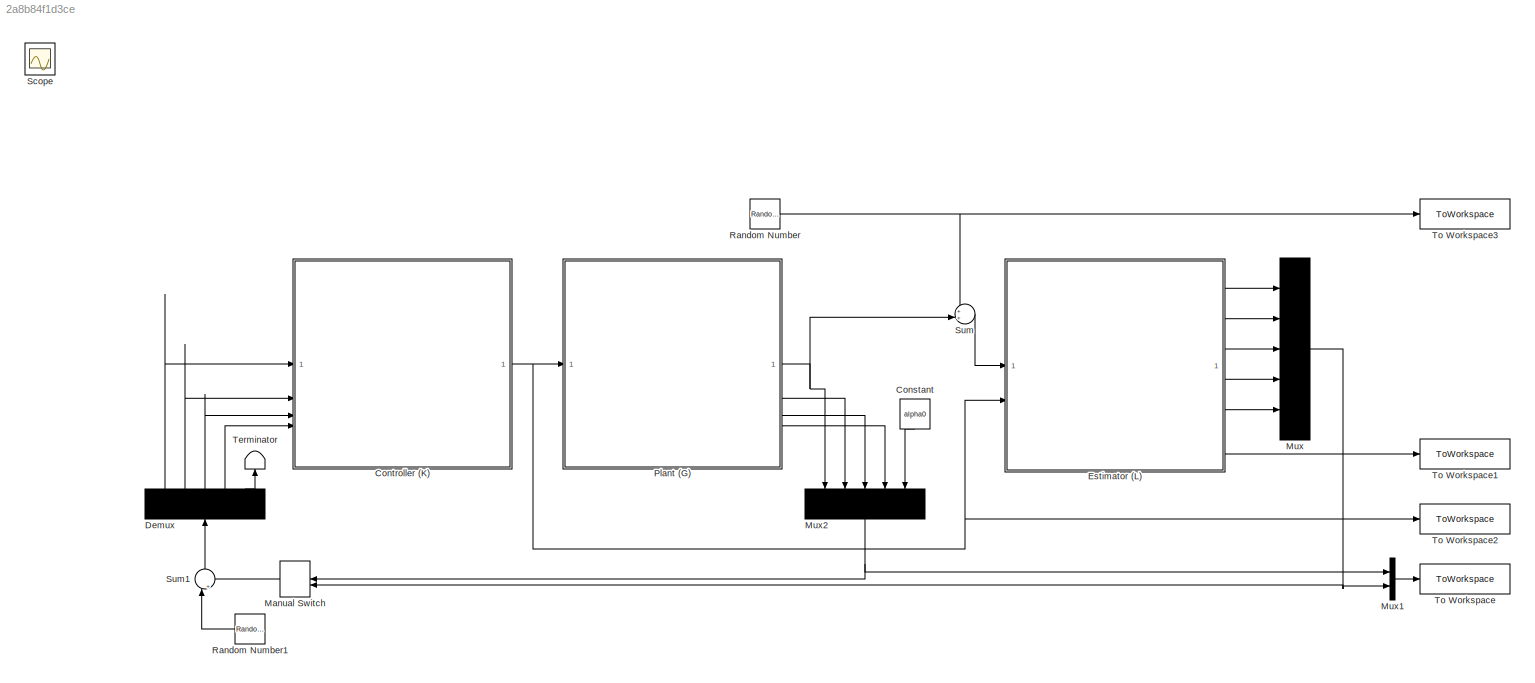
MODEL slx_2a8b84f1d3ce
KIND model
CONFIG AbsTol = auto
CONFIG EnableMultiTasking = off
CONFIG FixedStep = auto
CONFIG InitFcn = load('parameters.mat')
CONFIG MaxStep = auto
CONFIG MinStep = auto
CONFIG RelTol = 1e-3
CONFIG SampleTimeConstraint = Unconstrained
CONFIG SolverName = ode45
CONFIG StartTime = 0.0
CONFIG StopTime = 5
BLOCK [Constant] Constant
  NameLocation = left
  Value = alpha0
BLOCK [SubSystem] Controller (K)
  ReferencedSubsystem = LQR
BLOCK [Demux] Demux
  DisplayOption = none
  NameLocation = right
  Outputs = 5
BLOCK [SubSystem] Estimator (L)
  ReferencedSubsystem = EKF
BLOCK [ManualSwitch] Manual Switch
  CurrentSetting = 0
  NameLocation = top
BLOCK [Mux] Mux
  Inputs = 5
BLOCK [Mux] Mux1
  DisplayOption = bar
  Inputs = 2
BLOCK [Mux] Mux2
  Inputs = 5
  NameLocation = left
BLOCK [ModelReference] Plant (G)
  ModelNameDialog = electromagnetic_piston.slx
  ModelReferenceVersion = 1.20
BLOCK [RandomNumber] Random Number
  SampleTime = 0.002
  Variance = diag(R_KF)
BLOCK [RandomNumber] Random Number1
  NameLocation = top
  SampleTime = 0.002
  Seed = [0 10 20 30 40]
  Variance = diag(Q_KF)
BLOCK [Scope] Scope
  Floating = off
  IOType = viewer
  NumInputPorts = 1
  ScopeSpecificationString = Simulink.scopes.TimeScopeBlockCfg('CurrentConfiguration', extmgr.ConfigurationSet(extmgr.Configuration('Core','General UI',true),extmgr.Configuration('Core','Source UI',true),extmgr.Configuration('Sources','WiredSimulink',true),extmgr.Configuration('Visuals','Time Domain',true,'SerializedDisplays',{struct('MinYLimReal','-0.02031','MaxYLimReal','0.18281','YLabelReal','','MinYLimMag','0.00000','MaxY...<+3836ch>
BLOCK [Sum] Sum
  Inputs = ++|
BLOCK [Sum] Sum1
  Inputs = |++
  NameLocation = right
BLOCK [Terminator] Terminator
  NameLocation = right
BLOCK [ToWorkspace] To Workspace
  FixptAsFi = on
  MaxDataPoints = inf
  SampleTime = -1
  SaveFormat = Timeseries
  VariableName = states
BLOCK [ToWorkspace] To Workspace1
  FixptAsFi = on
  MaxDataPoints = inf
  SampleTime = -1
  SaveFormat = Timeseries
  VariableName = covariance
BLOCK [ToWorkspace] To Workspace2
  FixptAsFi = on
  MaxDataPoints = inf
  SampleTime = -1
  SaveFormat = Timeseries
  VariableName = control
BLOCK [ToWorkspace] To Workspace3
  FixptAsFi = on
  MaxDataPoints = inf
  SampleTime = -1
  SaveFormat = Timeseries
  VariableName = noise
LINE Constant:1 -> Mux2:5
NET Controller (K):1 -> Estimator (L):2, Plant (G):1, To Workspace2:1
LINE Demux:1 -> Controller (K):1
LINE Demux:2 -> Controller (K):2
LINE Demux:3 -> Controller (K):3
LINE Demux:4 -> Controller (K):4
LINE Demux:5 -> Terminator:1
LINE Estimator (L):1 -> Mux:1
LINE Estimator (L):2 -> Mux:2
LINE Estimator (L):3 -> Mux:3
LINE Estimator (L):4 -> Mux:4
LINE Estimator (L):5 -> Mux:5
LINE Estimator (L):6 -> To Workspace1:1
LINE Manual Switch:1 -> Sum1:2
LINE Mux1:1 -> To Workspace:1
NET Mux2:1 -> Manual Switch:1, Mux1:1
NET Mux:1 -> Manual Switch:2, Mux1:2
NET Plant (G):1 -> Mux2:1, Sum:2
LINE Plant (G):2 -> Mux2:2
LINE Plant (G):3 -> Mux2:3
LINE Plant (G):4 -> Mux2:4
LINE Random Number1:1 -> Sum1:1
NET Random Number:1 -> Sum:1, To Workspace3:1
LINE Sum1:1 -> Demux:1
LINE Sum:1 -> Estimator (L):1
note: NET lines group one-source signal fan-out (src -> all destinations, sorted); 1:1 wires keep LINE
